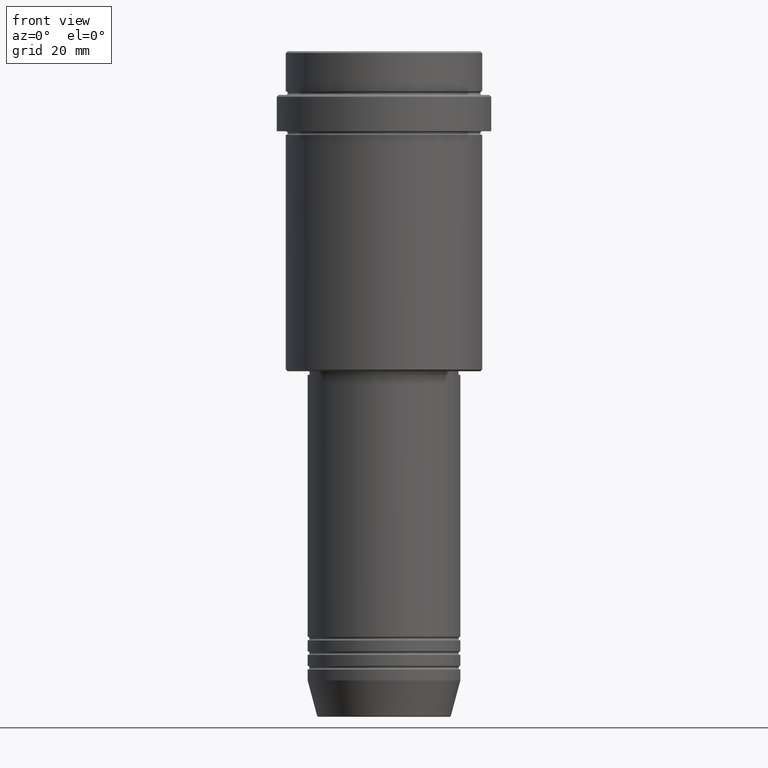
[diagram: clean part render]
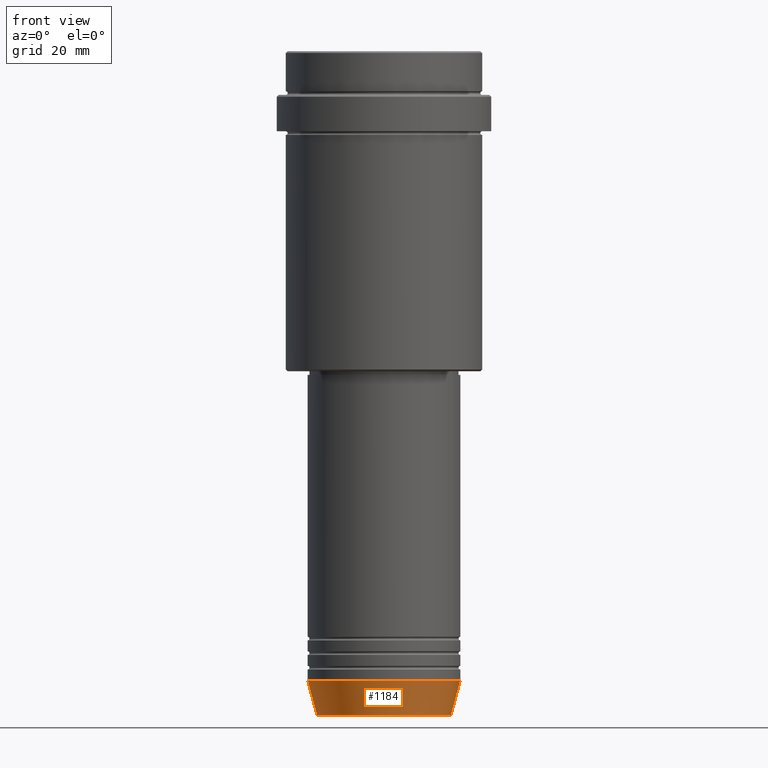
[diagram: same view with one face highlighted and labeled with its STEP entity id]
A machine part, front view. The second image highlights one B-rep face of the part: STEP entity #1184.
In plain terms, the highlighted conical surface has half-angle 15 deg.
Its self-contained STEP definition (entity closure, byte-faithful):
#6 = CIRCLE ( 'NONE', #877, 18.41980749484383040 ) ;
#19 = ORIENTED_EDGE ( 'NONE', *, *, #372, .F. ) ;
#68 = DIRECTION ( 'NONE',  ( -0.000000000000000000, -0.000000000000000000, 1.000000000000000000 ) ) ;
#98 = DIRECTION ( 'NONE',  ( -0.2588190451025211836, 3.169619151431770488E-17, 0.9659258262890680902 ) ) ;
#141 = DIRECTION ( 'NONE',  ( -0.000000000000000000, -0.000000000000000000, 1.000000000000000000 ) ) ;
#172 = CONICAL_SURFACE ( 'NONE', #393, 21.00000000000000000, 0.2617993877991499074 ) ;
#243 = CARTESIAN_POINT ( 'NONE',  ( 21.00000000000000000, 0.000000000000000000, -173.0000000000000000 ) ) ;
#343 = VECTOR ( 'NONE', #415, 1000.000000000000114 ) ;
#366 = DIRECTION ( 'NONE',  ( 1.000000000000000000, 0.000000000000000000, 0.000000000000000000 ) ) ;
#372 = EDGE_CURVE ( 'NONE', #1019, #1069, #1102, .T. ) ;
#393 = AXIS2_PLACEMENT_3D ( 'NONE', #811, #68, #366 ) ;
#415 = DIRECTION ( 'NONE',  ( 0.2588190451025211836, 0.000000000000000000, 0.9659258262890680902 ) ) ;
#420 = CARTESIAN_POINT ( 'NONE',  ( 0.000000000000000000, 0.000000000000000000, -173.0000000000000000 ) ) ;
#519 = LINE ( 'NONE', #976, #925 ) ;
#532 = VERTEX_POINT ( 'NONE', #1114 ) ;
#574 = CARTESIAN_POINT ( 'NONE',  ( -21.00000000000000000, 2.571758278209441661E-15, -173.0000000000000000 ) ) ;
#597 = EDGE_CURVE ( 'NONE', #532, #606, #6, .T. ) ;
#606 = VERTEX_POINT ( 'NONE', #1341 ) ;
#703 = ORIENTED_EDGE ( 'NONE', *, *, #907, .F. ) ;
#732 = AXIS2_PLACEMENT_3D ( 'NONE', #420, #738, #1385 ) ;
#738 = DIRECTION ( 'NONE',  ( -0.000000000000000000, -0.000000000000000000, 1.000000000000000000 ) ) ;
#780 = DIRECTION ( 'NONE',  ( 1.000000000000000000, 0.000000000000000000, 0.000000000000000000 ) ) ;
#803 = ORIENTED_EDGE ( 'NONE', *, *, #1235, .T. ) ;
#811 = CARTESIAN_POINT ( 'NONE',  ( 0.000000000000000000, 0.000000000000000000, -173.0000000000000000 ) ) ;
#877 = AXIS2_PLACEMENT_3D ( 'NONE', #1206, #141, #780 ) ;
#907 = EDGE_CURVE ( 'NONE', #532, #1019, #519, .T. ) ;
#925 = VECTOR ( 'NONE', #98, 1000.000000000000114 ) ;
#947 = CARTESIAN_POINT ( 'NONE',  ( 21.00000000000000000, 0.000000000000000000, -173.0000000000000000 ) ) ;
#976 = CARTESIAN_POINT ( 'NONE',  ( -21.00000000000000000, 2.571758278209441661E-15, -173.0000000000000000 ) ) ;
#1019 = VERTEX_POINT ( 'NONE', #574 ) ;
#1059 = EDGE_LOOP ( 'NONE', ( #703, #1140, #803, #19 ) ) ;
#1069 = VERTEX_POINT ( 'NONE', #243 ) ;
#1102 = CIRCLE ( 'NONE', #732, 21.00000000000000000 ) ;
#1114 = CARTESIAN_POINT ( 'NONE',  ( -18.41980749484383040, 2.413767053578267064E-15, -182.6294095225512706 ) ) ;
#1140 = ORIENTED_EDGE ( 'NONE', *, *, #597, .T. ) ;
#1153 = LINE ( 'NONE', #947, #343 ) ;
#1184 = ADVANCED_FACE ( 'NONE', ( #1248 ), #172, .T. ) ;
#1206 = CARTESIAN_POINT ( 'NONE',  ( 0.000000000000000000, 0.000000000000000000, -182.6294095225512706 ) ) ;
#1235 = EDGE_CURVE ( 'NONE', #606, #1069, #1153, .T. ) ;
#1248 = FACE_OUTER_BOUND ( 'NONE', #1059, .T. ) ;
#1341 = CARTESIAN_POINT ( 'NONE',  ( 18.41980749484383040, 0.000000000000000000, -182.6294095225512706 ) ) ;
#1385 = DIRECTION ( 'NONE',  ( 1.000000000000000000, 0.000000000000000000, 0.000000000000000000 ) ) ;